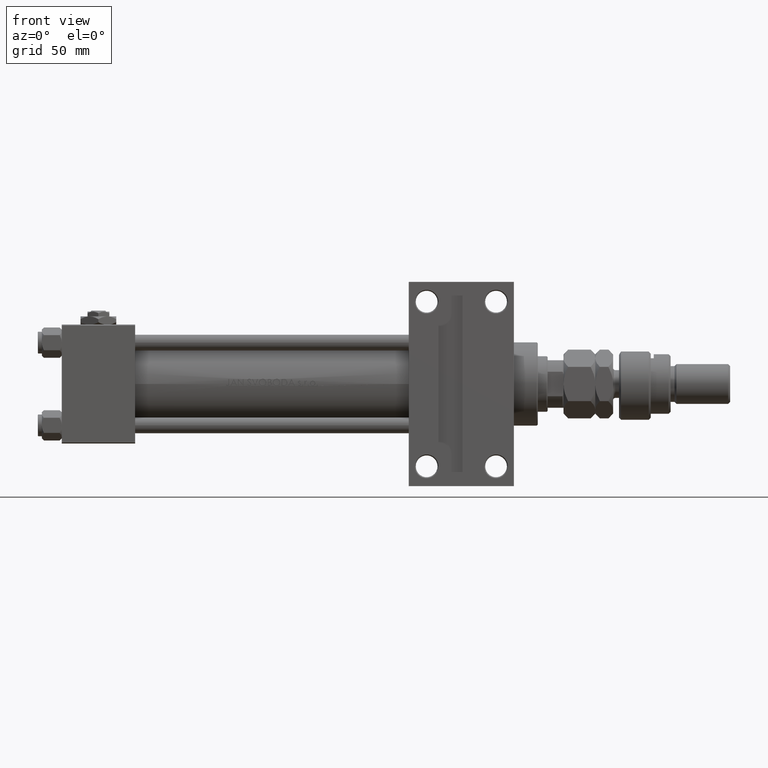
[diagram: clean part render]
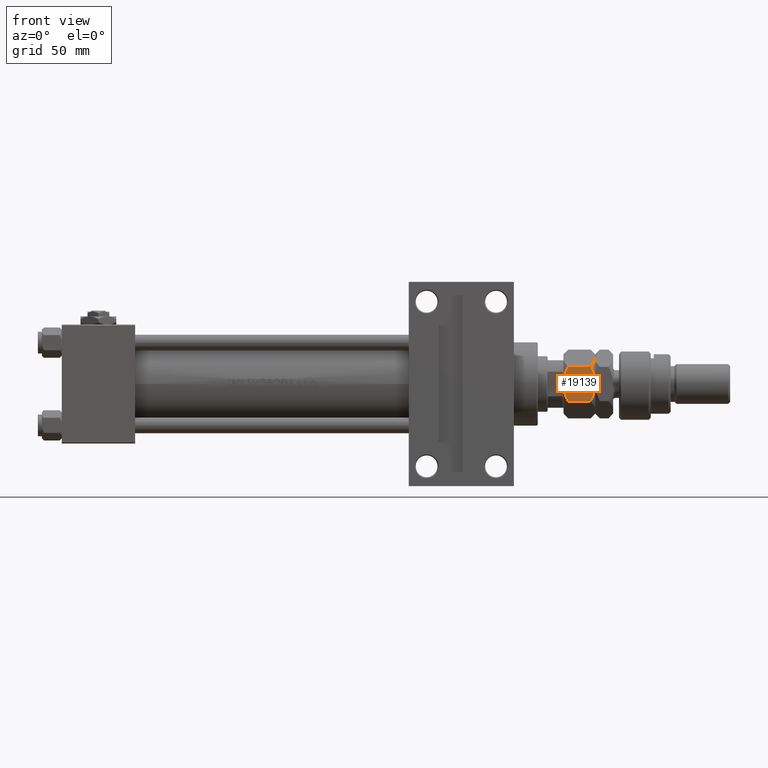
[diagram: same view with one face highlighted and labeled with its STEP entity id]
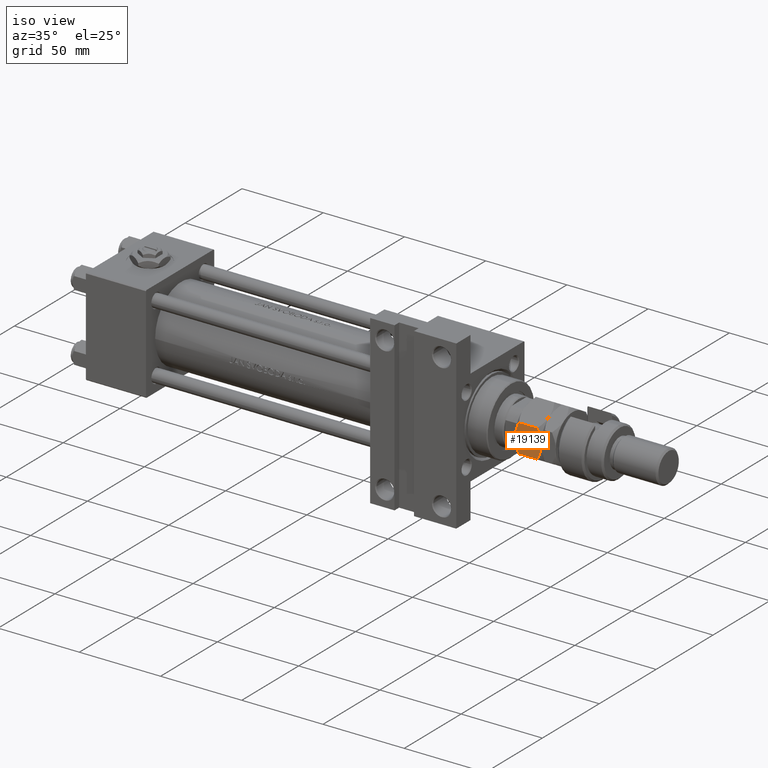
[diagram: same view with one face highlighted and labeled with its STEP entity id]
A machine part, front view. The second image highlights one B-rep face of the part: STEP entity #19139.
A second angle (iso view) of the same face is appended — the face is thin or edge-on in the first view.
In plain terms, the highlighted planar face has unit normal (0, 1, 0).
Its self-contained STEP definition (entity closure, byte-faithful):
#380 = CARTESIAN_POINT ( 'NONE',  ( 1.174746544192159625, -16.64226784216984711, 1.642267842169777836 ) ) ;
#436 = EDGE_CURVE ( 'NONE', #11650, #8300, #31803, .T. ) ;
#1824 = CARTESIAN_POINT ( 'NONE',  ( 4.247772349543483372, -14.86805556622359425, 15.55242859148698109 ) ) ;
#2817 = CARTESIAN_POINT ( 'NONE',  ( 10.11832554202262102, -11.47869010025374870, 0.2838026619462938327 ) ) ;
#3184 = CARTESIAN_POINT ( 'NONE',  ( 6.195449321423083688, -13.74356374221447119, -1.770863548392988866E-15 ) ) ;
#3262 = CARTESIAN_POINT ( 'NONE',  ( -3.416099238086855886E-15, -17.32050807568877104, 13.67949192431124317 ) ) ;
#3770 = CARTESIAN_POINT ( 'NONE',  ( 12.61607045183964360, -10.03661640420387080, 14.93952096862912171 ) ) ;
#5288 = PLANE ( 'NONE',  #12559 ) ;
#6417 = CARTESIAN_POINT ( 'NONE',  ( 2.378834511187501111, -15.94708733029709791, 14.93551393225600066 ) ) ;
#8300 = VERTEX_POINT ( 'NONE', #21659 ) ;
#9553 = EDGE_CURVE ( 'NONE', #20586, #41843, #40392, .T. ) ;
#10248 = DIRECTION ( 'NONE',  ( -0.000000000000000000, -0.000000000000000000, -1.000000000000000000 ) ) ;
#11650 = VERTEX_POINT ( 'NONE', #15679 ) ;
#11932 = LINE ( 'NONE', #12722, #23314 ) ;
#12559 = AXIS2_PLACEMENT_3D ( 'NONE', #25335, #25608, #16653 ) ;
#12722 = CARTESIAN_POINT ( 'NONE',  ( 15.00000000000000000, -8.660254037844389075, 16.00000000000000000 ) ) ;
#14578 = CARTESIAN_POINT ( 'NONE',  ( -3.035766082959412415E-15, -17.32050807568877104, 16.00000000000000000 ) ) ;
#15567 = CARTESIAN_POINT ( 'NONE',  ( 7.499999999999993783, -12.99038105676658006, 16.00000000000000000 ) ) ;
#15679 = CARTESIAN_POINT ( 'NONE',  ( 15.00000000000000000, -8.660254037844389075, 2.320508075688767047 ) ) ;
#16653 = DIRECTION ( 'NONE',  ( -0.8660254037844388186, -0.4999999999999996669, 0.000000000000000000 ) ) ;
#18825 = B_SPLINE_CURVE_WITH_KNOTS ( 'NONE', 3,
 ( #52265, #3184, #28123, #48190, #380, #45936 ),
 .UNSPECIFIED., .F., .F.,
 ( 4, 2, 4 ),
 ( 0.008977392552884455937, 0.01343452311421657053, 0.01789165367554868685 ),
 .UNSPECIFIED. ) ;
#19072 = CARTESIAN_POINT ( 'NONE',  ( 10.75222765045651308, -11.11270654730956586, 0.4475714085130263475 ) ) ;
#19139 = ADVANCED_FACE ( 'NONE', ( #42431 ), #5288, .F. ) ;
#20017 = EDGE_CURVE ( 'NONE', #33808, #20586, #45399, .T. ) ;
#20271 = CARTESIAN_POINT ( 'NONE',  ( 13.82525345580783416, -9.338494271363316557, 14.35773215783021861 ) ) ;
#20586 = VERTEX_POINT ( 'NONE', #15567 ) ;
#21659 = CARTESIAN_POINT ( 'NONE',  ( 7.499999999999994671, -12.99038105676658184, 0.000000000000000000 ) ) ;
#22157 = LINE ( 'NONE', #14578, #30183 ) ;
#22926 = CARTESIAN_POINT ( 'NONE',  ( 7.499999999999993783, -12.99038105676658006, 16.00000000000000000 ) ) ;
#23314 = VECTOR ( 'NONE', #36622, 1000.000000000000000 ) ;
#23873 = ORIENTED_EDGE ( 'NONE', *, *, #30928, .F. ) ;
#23934 = CARTESIAN_POINT ( 'NONE',  ( 8.156876182308243628, -12.61113341608666083, -1.722865014715246890E-15 ) ) ;
#24232 = CARTESIAN_POINT ( 'NONE',  ( 15.00000000000000000, -8.660254037844389075, 13.67949192431123961 ) ) ;
#25184 = ORIENTED_EDGE ( 'NONE', *, *, #9553, .F. ) ;
#25335 = CARTESIAN_POINT ( 'NONE',  ( -3.035766082959412415E-15, -17.32050807568877104, 16.00000000000000000 ) ) ;
#25608 = DIRECTION ( 'NONE',  ( -0.4999999999999996669, 0.8660254037844388186, 0.000000000000000000 ) ) ;
#25961 = EDGE_LOOP ( 'NONE', ( #40248, #23873, #25184, #45488, #34951, #32102 ) ) ;
#26104 = EDGE_CURVE ( 'NONE', #8300, #33965, #18825, .T. ) ;
#28020 = CARTESIAN_POINT ( 'NONE',  ( 12.62116548881249756, -10.03367478323606754, 1.064486067744006892 ) ) ;
#28123 = CARTESIAN_POINT ( 'NONE',  ( 4.913081180497406386, -14.48393933357810681, 0.2303299219392160313 ) ) ;
#30183 = VECTOR ( 'NONE', #10248, 1000.000000000000000 ) ;
#30831 = CARTESIAN_POINT ( 'NONE',  ( 6.843123817691747490, -13.36962869744650284, 16.00000000000000711 ) ) ;
#30928 = EDGE_CURVE ( 'NONE', #41843, #11650, #11932, .T. ) ;
#31803 = B_SPLINE_CURVE_WITH_KNOTS ( 'NONE', 3,
 ( #39953, #36157, #28020, #19072, #2817, #44560, #23934, #52695 ),
 .UNSPECIFIED., .F., .F.,
 ( 4, 2, 2, 4 ),
 ( 2.544309033642853415E-07, 0.004488823491893907842, 0.006733108022389181456, 0.008977392552884455937 ),
 .UNSPECIFIED. ) ;
#32102 = ORIENTED_EDGE ( 'NONE', *, *, #26104, .F. ) ;
#32512 = EDGE_CURVE ( 'NONE', #33808, #33965, #22157, .T. ) ;
#33808 = VERTEX_POINT ( 'NONE', #3262 ) ;
#33965 = VERTEX_POINT ( 'NONE', #41871 ) ;
#34951 = ORIENTED_EDGE ( 'NONE', *, *, #32512, .T. ) ;
#35965 = CARTESIAN_POINT ( 'NONE',  ( 6.176419610670694560, -13.75455055083996214, 15.94046462602530312 ) ) ;
#36157 = CARTESIAN_POINT ( 'NONE',  ( 13.82389157469335750, -9.339280553791367012, 1.641481559741792884 ) ) ;
#36622 = DIRECTION ( 'NONE',  ( -0.000000000000000000, -0.000000000000000000, -1.000000000000000000 ) ) ;
#36844 = CARTESIAN_POINT ( 'NONE',  ( 15.00000000000000000, -8.660254037844389075, 13.67949192431123961 ) ) ;
#37108 = CARTESIAN_POINT ( 'NONE',  ( 7.499999999999993783, -12.99038105676658006, 16.00000000000000000 ) ) ;
#39953 = CARTESIAN_POINT ( 'NONE',  ( 15.00000000000000000, -8.660254037844389075, 2.320508075688767047 ) ) ;
#40028 = CARTESIAN_POINT ( 'NONE',  ( 4.881674457977372761, -14.50207201327941320, 15.71619733805371411 ) ) ;
#40248 = ORIENTED_EDGE ( 'NONE', *, *, #436, .F. ) ;
#40392 = B_SPLINE_CURVE_WITH_KNOTS ( 'NONE', 3,
 ( #37108, #49301, #40902, #3770, #20271, #36844 ),
 .UNSPECIFIED., .F., .F.,
 ( 4, 2, 4 ),
 ( 0.008977392552884447263, 0.01343452311421656532, 0.01789165367554868338 ),
 .UNSPECIFIED. ) ;
#40902 = CARTESIAN_POINT ( 'NONE',  ( 10.08691881950258917, -11.49682277995505331, 15.76967007806078591 ) ) ;
#41843 = VERTEX_POINT ( 'NONE', #24232 ) ;
#41871 = CARTESIAN_POINT ( 'NONE',  ( -2.796947266322166691E-15, -17.32050807568877104, 2.320508075688761718 ) ) ;
#42431 = FACE_OUTER_BOUND ( 'NONE', #25961, .T. ) ;
#43559 = CARTESIAN_POINT ( 'NONE',  ( 1.176108425306638505, -16.64148155974179488, 14.35851844025821755 ) ) ;
#44560 = CARTESIAN_POINT ( 'NONE',  ( 8.823580389329300999, -12.22621156269320331, 0.05953537397470176629 ) ) ;
#45399 = B_SPLINE_CURVE_WITH_KNOTS ( 'NONE', 3,
 ( #51419, #43559, #6417, #1824, #40028, #35965, #30831, #22926 ),
 .UNSPECIFIED., .F., .F.,
 ( 4, 2, 2, 4 ),
 ( 2.544309033646407248E-07, 0.004488823491893905240, 0.006733108022389175384, 0.008977392552884447263 ),
 .UNSPECIFIED. ) ;
#45488 = ORIENTED_EDGE ( 'NONE', *, *, #20017, .F. ) ;
#45936 = CARTESIAN_POINT ( 'NONE',  ( -2.796947266322166691E-15, -17.32050807568877104, 2.320508075688761718 ) ) ;
#48190 = CARTESIAN_POINT ( 'NONE',  ( 2.383929548160349299, -15.94414570932928576, 1.060479031370876957 ) ) ;
#49301 = CARTESIAN_POINT ( 'NONE',  ( 8.804550678576907430, -12.23719837131869248, 16.00000000000000000 ) ) ;
#51419 = CARTESIAN_POINT ( 'NONE',  ( -3.416099238086855886E-15, -17.32050807568877104, 13.67949192431124317 ) ) ;
#52265 = CARTESIAN_POINT ( 'NONE',  ( 7.499999999999994671, -12.99038105676658184, 0.000000000000000000 ) ) ;
#52695 = CARTESIAN_POINT ( 'NONE',  ( 7.499999999999994671, -12.99038105676658184, 0.000000000000000000 ) ) ;